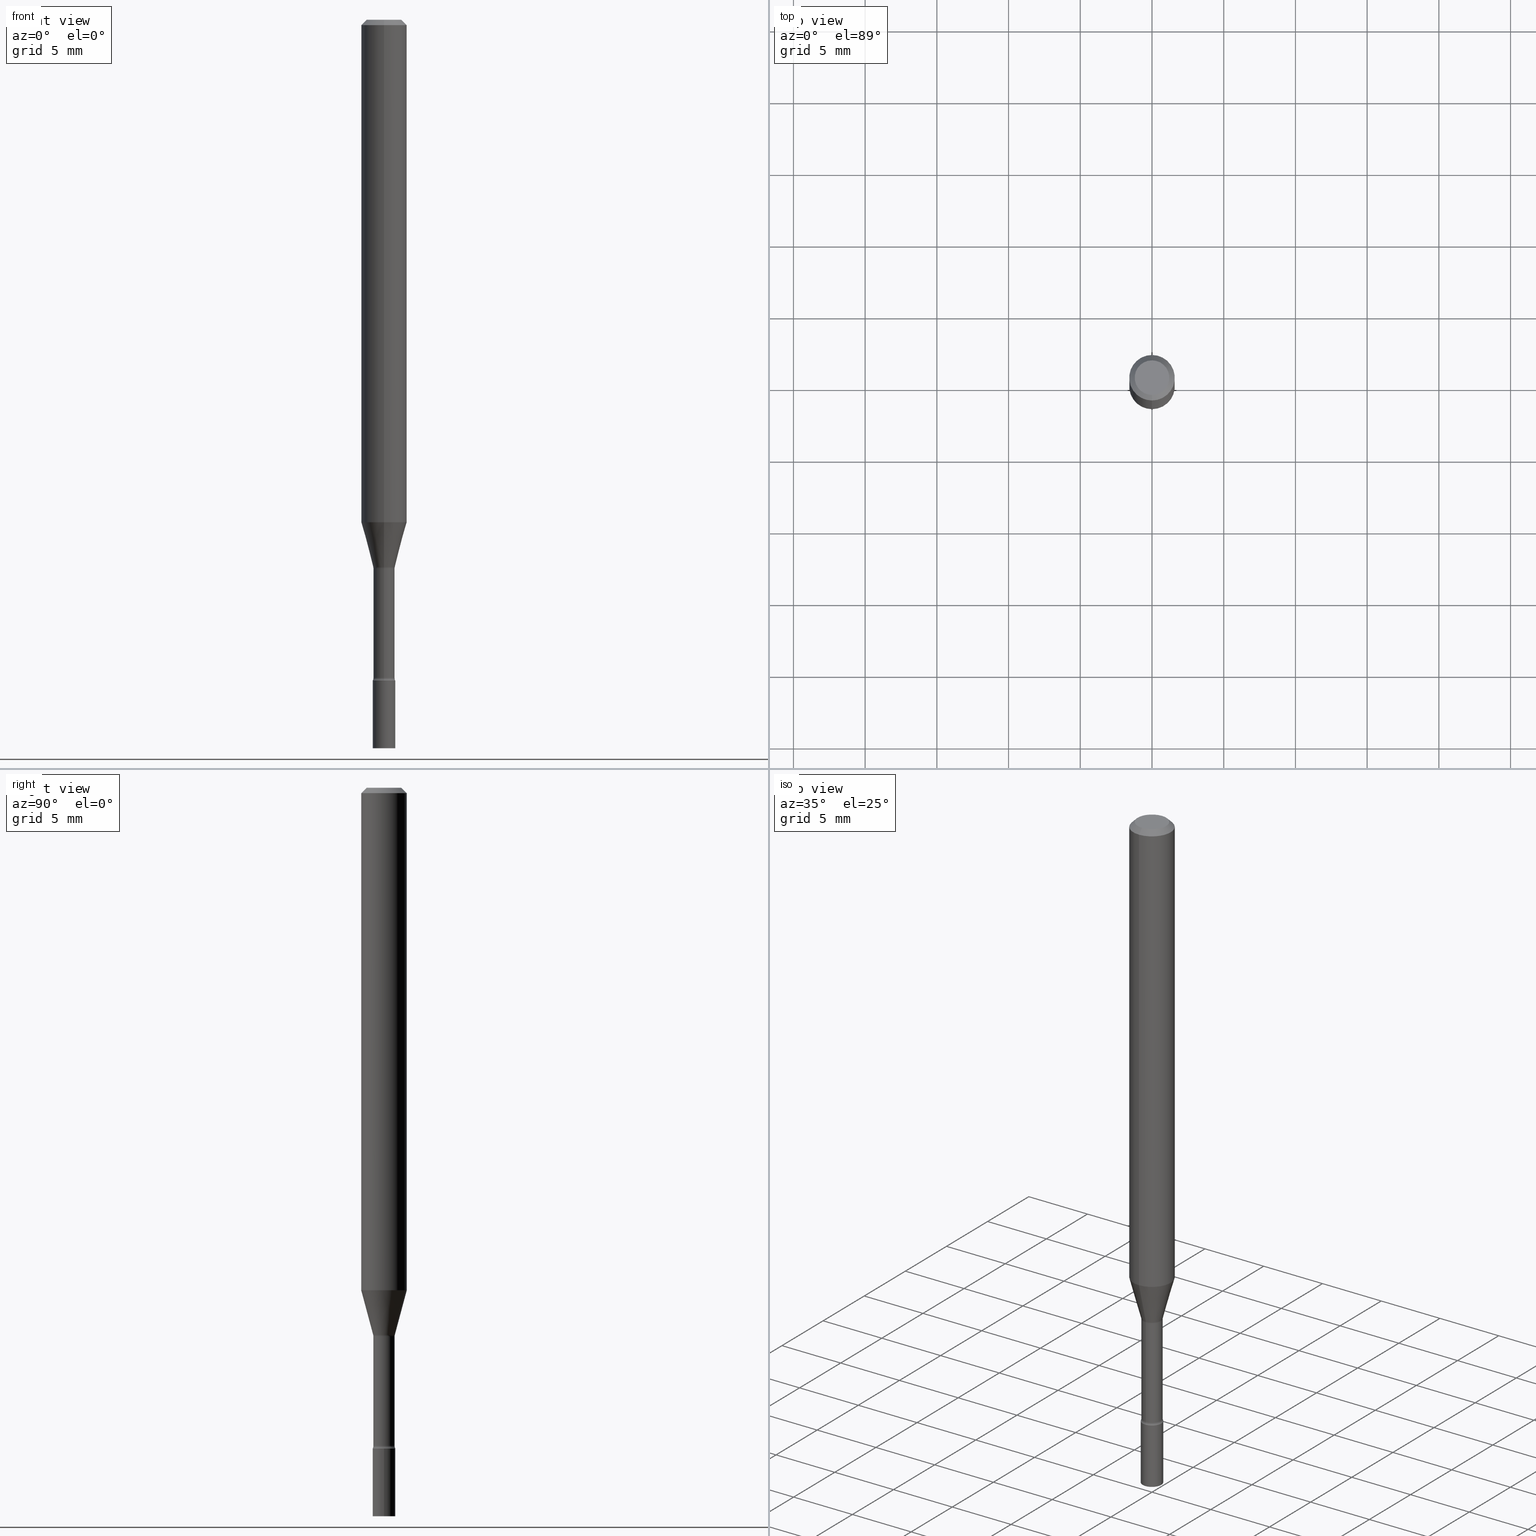
[diagram: canonical four-view strip — front | top / right | iso, engineering-drawing reading convention]
A machine part, canonical four-view strip (front | top / right | iso — engineering-drawing reading convention). The complete STEP part file that produces these views, byte-faithful:
ISO-10303-21;
HEADER;
FILE_DESCRIPTION (( 'STEP AP203' ),
    '1' );
FILE_NAME ('03413.STEP',
    '2024-03-08T21:18:52',
    ( '' ),
    ( '' ),
    'SwSTEP 2.0',
    'SolidWorks 2023',
    '' );
FILE_SCHEMA (( 'CONFIG_CONTROL_DESIGN' ));
ENDSEC;

DATA;
#1 = DIRECTION ( 'NONE',  ( 6.982962677686265922E-15, 1.000000000000000000, -3.483106191921935554E-15 ) ) ;
#2 = CARTESIAN_POINT ( 'NONE',  ( -4.364351673553912750E-16, -0.06250000000000005551, -0.01499999999999981209 ) ) ;
#3 = CARTESIAN_POINT ( 'NONE',  ( 4.436116649557529793E-29, -6.333495257881912546E-15, -1.813999999999999835 ) ) ;
#4 = AXIS2_PLACEMENT_3D ( 'NONE', #116, #491, #123 ) ;
#5 = DIRECTION ( 'NONE',  ( 1.000000000000000000, -6.982962677686266711E-15, 4.876176775795935232E-29 ) ) ;
#6 = LINE ( 'NONE', #328, #68 ) ;
#7 = CARTESIAN_POINT ( 'NONE',  ( 0.03099999999999999978, -7.199434520694564708E-15, -2.000000000000000000 ) ) ;
#8 = DIRECTION ( 'NONE',  ( -6.982962677686265922E-15, -1.000000000000000000, 0.000000000000000000 ) ) ;
#9 =( LENGTH_UNIT ( ) NAMED_UNIT ( * ) SI_UNIT ( $, .METRE. ) );
#10 = DIRECTION ( 'NONE',  ( -6.982962677686266711E-15, -1.000000000000000000, 3.491452733121231775E-15 ) ) ;
#11 = EDGE_LOOP ( 'NONE', ( #171, #231, #264, #467 ) ) ;
#12 = PERSON_AND_ORGANIZATION ( #230, #172 ) ;
#13 = CIRCLE ( 'NONE', #252, 0.02966111260566398414 ) ;
#14 = DIRECTION ( 'NONE',  ( -6.982962677686265922E-15, -1.000000000000000000, 4.370956789862821150E-15 ) ) ;
#15 = DIRECTION ( 'NONE',  ( -2.445488781453985936E-29, 3.491452733121231775E-15, 1.000000000000000000 ) ) ;
#16 = VERTEX_POINT ( 'NONE', #105 ) ;
#17 = PERSON_AND_ORGANIZATION_ROLE ( 'design_owner' ) ;
#18 = EDGE_CURVE ( 'NONE', #307, #257, #353, .T. ) ;
#19 = DIRECTION ( 'NONE',  ( 1.000000000000000000, -6.982962677686270655E-15, 0.000000000000000000 ) ) ;
#20 = VERTEX_POINT ( 'NONE', #185 ) ;
#21 = DATE_AND_TIME ( #212, #314 ) ;
#22 = VERTEX_POINT ( 'NONE', #114 ) ;
#23 = ADVANCED_FACE ( 'NONE', ( #107 ), #267, .F. ) ;
#24 = COORDINATED_UNIVERSAL_TIME_OFFSET ( 5, 0, .BEHIND. ) ;
#25 = FACE_OUTER_BOUND ( 'NONE', #379, .T. ) ;
#26 = APPLICATION_CONTEXT ( 'configuration controlled 3d designs of mechanical parts and assemblies' ) ;
#27 = ORIENTED_EDGE ( 'NONE', *, *, #210, .F. ) ;
#28 = VERTEX_POINT ( 'NONE', #440 ) ;
#29 = ADVANCED_FACE ( 'NONE', ( #34 ), #480, .T. ) ;
#30 = CIRCLE ( 'NONE', #263, 0.06250000000000000000 ) ;
#31 = EDGE_LOOP ( 'NONE', ( #181, #190, #387, #426 ) ) ;
#32 = CC_DESIGN_APPROVAL ( #76, ( #163 ) ) ;
#33 = ORIENTED_EDGE ( 'NONE', *, *, #401, .T. ) ;
#34 = FACE_OUTER_BOUND ( 'NONE', #65, .T. ) ;
#35 = DIRECTION ( 'NONE',  ( 2.445488781453985936E-29, -3.491452733121231775E-15, -1.000000000000000000 ) ) ;
#36 = AXIS2_PLACEMENT_3D ( 'NONE', #473, #64, #512 ) ;
#37 = CIRCLE ( 'NONE', #447, 0.03099999999999999978 ) ;
#38 = DIRECTION ( 'NONE',  ( -2.445488781453985936E-29, 3.491452733121231775E-15, 1.000000000000000000 ) ) ;
#39 = CYLINDRICAL_SURFACE ( 'NONE', #464, 0.03099999999999999978 ) ;
#40 = DIRECTION ( 'NONE',  ( -6.982962677686265922E-15, -1.000000000000000000, 0.000000000000000000 ) ) ;
#41 = MANIFOLD_SOLID_BREP ( 'Body-Move/Copy2[1]', #160 ) ;
#42 = DIRECTION ( 'NONE',  ( -2.445488781453986216E-29, 3.491452733121232169E-15, 1.000000000000000000 ) ) ;
#43 = CARTESIAN_POINT ( 'NONE',  ( -2.035533620545106341E-16, -0.02915000000000633404, -1.806783525791634704 ) ) ;
#44 = AXIS2_PLACEMENT_3D ( 'NONE', #282, #195, #245 ) ;
#45 = CARTESIAN_POINT ( 'NONE',  ( 4.364351673553919652E-16, 0.06249999999999995143, -0.01500000000000024751 ) ) ;
#46 = DIRECTION ( 'NONE',  ( 1.000000000000000000, -7.105427357601001070E-15, 4.926315158223024919E-29 ) ) ;
#47 = CARTESIAN_POINT ( 'NONE',  ( 0.000000000000000000, 0.000000000000000000, 0.000000000000000000 ) ) ;
#48 = CARTESIAN_POINT ( 'NONE',  ( 3.274220454076509529E-16, 0.02966111260565873833, -1.502092501787273271 ) ) ;
#49 = ADVANCED_FACE ( 'NONE', ( #273 ), #361, .T. ) ;
#50 = DIRECTION ( 'NONE',  ( -2.445488781453985375E-29, 3.491452733121232169E-15, 1.000000000000000000 ) ) ;
#51 = ORIENTED_EDGE ( 'NONE', *, *, #133, .F. ) ;
#52 = AXIS2_PLACEMENT_3D ( 'NONE', #487, #279, #445 ) ;
#53 = APPROVAL_ROLE ( '' ) ;
#54 = AXIS2_PLACEMENT_3D ( 'NONE', #167, #492, #367 ) ;
#55 = DIRECTION ( 'NONE',  ( -6.982962677686265922E-15, -1.000000000000000000, 0.000000000000000000 ) ) ;
#56 = ORIENTED_EDGE ( 'NONE', *, *, #108, .F. ) ;
#57 = PERSON_AND_ORGANIZATION ( #230, #172 ) ;
#58 = CARTESIAN_POINT ( 'NONE',  ( 4.890937612370273194E-29, -6.982962677686291165E-15, -2.000000000000000000 ) ) ;
#59 = EDGE_LOOP ( 'NONE', ( #56, #317, #339, #438 ) ) ;
#60 = ORIENTED_EDGE ( 'NONE', *, *, #269, .F. ) ;
#61 = APPROVAL_ROLE ( '' ) ;
#62 = CIRCLE ( 'NONE', #86, 0.03099999999999999978 ) ;
#63 = DIRECTION ( 'NONE',  ( -6.982962677686266711E-15, -1.000000000000000000, 3.491452733121231775E-15 ) ) ;
#64 = DIRECTION ( 'NONE',  ( -2.445488781453985936E-29, 3.491452733121231775E-15, 1.000000000000000000 ) ) ;
#65 = EDGE_LOOP ( 'NONE', ( #175, #304, #112, #149 ) ) ;
#66 = ADVANCED_FACE ( 'NONE', ( #272 ), #441, .F. ) ;
#67 = UNCERTAINTY_MEASURE_WITH_UNIT (LENGTH_MEASURE( 1.000000000000000082E-05 ), #158, 'distance_accuracy_value', 'NONE');
#68 = VECTOR ( 'NONE', #82, 39.37007874015748143 ) ;
#69 = AXIS2_PLACEMENT_3D ( 'NONE', #275, #87, #291 ) ;
#70 = EDGE_LOOP ( 'NONE', ( #398, #33, #236, #349 ) ) ;
#71 = ORIENTED_EDGE ( 'NONE', *, *, #498, .F. ) ;
#72 = EDGE_CURVE ( 'NONE', #516, #99, #219, .T. ) ;
#73 = FACE_OUTER_BOUND ( 'NONE', #70, .T. ) ;
#74 = PRODUCT_DEFINITION_SHAPE ( 'NONE', 'NONE',  #238 ) ;
#75 = CARTESIAN_POINT ( 'NONE',  ( 4.436080414419837365E-29, -6.333547148661465016E-15, -1.813999999999999835 ) ) ;
#76 = APPROVAL ( #422, 'UNSPECIFIED' ) ;
#77 = CIRCLE ( 'NONE', #312, 0.06250000000000000000 ) ;
#78 = LOCAL_TIME ( 16, 18, 52.00000000000000000, #310 ) ;
#79 = CARTESIAN_POINT ( 'NONE',  ( 3.137046178381285686E-16, 0.04414999999999372898, -1.806783525791634926 ) ) ;
#80 = DIRECTION ( 'NONE',  ( 7.105427357601001859E-15, 1.000000000000000000, 0.000000000000000000 ) ) ;
#81 = CARTESIAN_POINT ( 'NONE',  ( 4.440892098500625669E-16, 0.06250000000000000000, -2.182157958200769613E-16 ) ) ;
#82 = DIRECTION ( 'NONE',  ( -2.445468806185136877E-29, 3.491481338843145188E-15, 1.000000000000000000 ) ) ;
#83 = ADVANCED_FACE ( 'NONE', ( #25 ), #300, .T. ) ;
#84 = CARTESIAN_POINT ( 'NONE',  ( 4.890937612370273194E-29, -6.982962677686291165E-15, -2.000000000000000000 ) ) ;
#85 = DIRECTION ( 'NONE',  ( -2.445488781453985936E-29, 3.491452733121231775E-15, 1.000000000000000000 ) ) ;
#86 = AXIS2_PLACEMENT_3D ( 'NONE', #75, #411, #165 ) ;
#87 = DIRECTION ( 'NONE',  ( -2.445488781453985936E-29, 3.491452733121231775E-15, 1.000000000000000000 ) ) ;
#88 = LINE ( 'NONE', #346, #455 ) ;
#89 = SHAPE_DEFINITION_REPRESENTATION ( #74, #313 ) ;
#90 = FACE_OUTER_BOUND ( 'NONE', #125, .T. ) ;
#91 = ORIENTED_EDGE ( 'NONE', *, *, #200, .F. ) ;
#92 = APPROVAL_STATUS ( 'not_yet_approved' ) ;
#93 = DIRECTION ( 'NONE',  ( -6.982962677686265922E-15, -1.000000000000000000, 3.491452733121232169E-15 ) ) ;
#94 = ADVANCED_FACE ( 'NONE', ( #450 ), #161, .T. ) ;
#95 = PERSON_AND_ORGANIZATION_ROLE ( 'creator' ) ;
#96 = CIRCLE ( 'NONE', #44, 0.01500000000000001853 ) ;
#97 = DIRECTION ( 'NONE',  ( -6.982962677686265922E-15, -1.000000000000000000, 3.491452733121231381E-15 ) ) ;
#98 = EDGE_CURVE ( 'NONE', #220, #28, #283, .T. ) ;
#99 = VERTEX_POINT ( 'NONE', #115 ) ;
#100 = PERSON_AND_ORGANIZATION ( #230, #172 ) ;
#101 = VERTEX_POINT ( 'NONE', #2 ) ;
#102 = PERSON_AND_ORGANIZATION ( #230, #172 ) ;
#103 = EDGE_CURVE ( 'NONE', #307, #137, #435, .T. ) ;
#104 = VECTOR ( 'NONE', #42, 39.37007874015748143 ) ;
#105 = CARTESIAN_POINT ( 'NONE',  ( -0.03099999999999999978, -6.437986665088246838E-15, -1.813999999999999835 ) ) ;
#106 = ORIENTED_EDGE ( 'NONE', *, *, #333, .T. ) ;
#107 = FACE_OUTER_BOUND ( 'NONE', #215, .T. ) ;
#108 = EDGE_CURVE ( 'NONE', #253, #16, #6, .T. ) ;
#109 = EDGE_CURVE ( 'NONE', #390, #137, #484, .T. ) ;
#110 = CIRCLE ( 'NONE', #209, 0.02914999999999999883 ) ;
#111 = CC_DESIGN_APPROVAL ( #451, ( #238 ) ) ;
#112 = ORIENTED_EDGE ( 'NONE', *, *, #302, .F. ) ;
#113 = ADVANCED_FACE ( 'NONE', ( #124 ), #242, .T. ) ;
#114 = CARTESIAN_POINT ( 'NONE',  ( 0.03099999999999999978, -6.550018991669739348E-15, -1.813999999999999835 ) ) ;
#115 = CARTESIAN_POINT ( 'NONE',  ( -3.773273898774340269E-16, -0.04749999999999999362, 1.369287351235985732E-16 ) ) ;
#116 = CARTESIAN_POINT ( 'NONE',  ( 3.668233172180986383E-31, -5.237179099681858583E-17, -0.01500000000000003067 ) ) ;
#117 = EDGE_CURVE ( 'NONE', #515, #22, #332, .T. ) ;
#118 = DIRECTION ( 'NONE',  ( -2.445488781453985936E-29, 3.491452733121231775E-15, 1.000000000000000000 ) ) ;
#119 = AXIS2_PLACEMENT_3D ( 'NONE', #311, #232, #226 ) ;
#120 = DIRECTION ( 'NONE',  ( 1.000000000000000000, -7.105427357601001070E-15, 4.926315158223024919E-29 ) ) ;
#121 = CARTESIAN_POINT ( 'NONE',  ( 3.673350361826927807E-29, -5.244484970766083599E-15, -1.502092501787273271 ) ) ;
#122 = ORIENTED_EDGE ( 'NONE', *, *, #109, .F. ) ;
#123 = DIRECTION ( 'NONE',  ( -6.982962677686265922E-15, -1.000000000000000000, 3.483106191921935554E-15 ) ) ;
#124 = FACE_OUTER_BOUND ( 'NONE', #143, .T. ) ;
#125 = EDGE_LOOP ( 'NONE', ( #183, #262 ) ) ;
#126 = DIRECTION ( 'NONE',  ( 6.982962677686265922E-15, 1.000000000000000000, -3.483106191921935554E-15 ) ) ;
#127 = CARTESIAN_POINT ( 'NONE',  ( 4.418468842839320606E-29, -6.308299279283618555E-15, -1.806783525791634704 ) ) ;
#128 = CIRCLE ( 'NONE', #397, 0.02915000000000002311 ) ;
#129 = LENGTH_MEASURE_WITH_UNIT ( LENGTH_MEASURE( 0.02539999999999999897 ), #9 );
#130 = CARTESIAN_POINT ( 'NONE',  ( 3.682814365644040998E-29, -5.258082867198169507E-15, -1.505974787463811193 ) ) ;
#131 = DATE_AND_TIME ( #250, #78 ) ;
#132 = CARTESIAN_POINT ( 'NONE',  ( 0.000000000000000000, 0.000000000000000000, 0.000000000000000000 ) ) ;
#133 = EDGE_CURVE ( 'NONE', #249, #101, #453, .T. ) ;
#134 = EDGE_LOOP ( 'NONE', ( #360, #286, #358, #321 ) ) ;
#135 = COORDINATED_UNIVERSAL_TIME_OFFSET ( 5, 0, .BEHIND. ) ;
#136 = FACE_OUTER_BOUND ( 'NONE', #146, .T. ) ;
#137 = VERTEX_POINT ( 'NONE', #409 ) ;
#138 = CIRCLE ( 'NONE', #244, 0.02915000000000002311 ) ;
#139 = PERSON_AND_ORGANIZATION ( #230, #172 ) ;
#140 = FACE_OUTER_BOUND ( 'NONE', #514, .T. ) ;
#141 = ORIENTED_EDGE ( 'NONE', *, *, #18, .T. ) ;
#142 = APPLICATION_PROTOCOL_DEFINITION ( 'international standard', 'config_control_design', 1994, #419 ) ;
#143 = EDGE_LOOP ( 'NONE', ( #344, #368, #316, #224 ) ) ;
#144 = ADVANCED_FACE ( 'NONE', ( #73 ), #355, .T. ) ;
#145 = APPROVAL_DATE_TIME ( #131, #393 ) ;
#146 = EDGE_LOOP ( 'NONE', ( #122, #248, #211, #265 ) ) ;
#147 = AXIS2_PLACEMENT_3D ( 'NONE', #402, #180, #208 ) ;
#148 = CC_DESIGN_APPROVAL ( #393, ( #513 ) ) ;
#149 = ORIENTED_EDGE ( 'NONE', *, *, #98, .F. ) ;
#150 = VERTEX_POINT ( 'NONE', #452 ) ;
#151 = ORIENTED_EDGE ( 'NONE', *, *, #117, .F. ) ;
#152 = AXIS2_PLACEMENT_3D ( 'NONE', #159, #46, #80 ) ;
#153 = CIRCLE ( 'NONE', #290, 0.03099999999999999978 ) ;
#154 = ORIENTED_EDGE ( 'NONE', *, *, #210, .T. ) ;
#155 = EDGE_CURVE ( 'NONE', #16, #22, #268, .T. ) ;
#156 = DIRECTION ( 'NONE',  ( -2.445488781453985936E-29, 3.491452733121231775E-15, 1.000000000000000000 ) ) ;
#157 = CC_DESIGN_PERSON_AND_ORGANIZATION_ASSIGNMENT ( #57, #352, ( #513 ) ) ;
#158 =( CONVERSION_BASED_UNIT ( 'INCH', #129 ) LENGTH_UNIT ( ) NAMED_UNIT ( #281 ) );
#159 = CARTESIAN_POINT ( 'NONE',  ( 3.137046178381209758E-16, 0.04414999999999474206, -1.505974787463811415 ) ) ;
#160 = CLOSED_SHELL ( 'NONE', ( #94, #359, #444, #385 ) ) ;
#161 = CYLINDRICAL_SURFACE ( 'NONE', #276, 0.03099999999999999978 ) ;
#162 = VECTOR ( 'NONE', #428, 39.37007874015748854 ) ;
#163 = SECURITY_CLASSIFICATION ( '', '', #391 ) ;
#164 = DIRECTION ( 'NONE',  ( -2.445488781453986216E-29, 3.491452733121232169E-15, 1.000000000000000000 ) ) ;
#165 = DIRECTION ( 'NONE',  ( 1.000000000000000000, -6.982962677686270655E-15, 0.000000000000000000 ) ) ;
#166 = CYLINDRICAL_SURFACE ( 'NONE', #320, 0.06250000000000000000 ) ;
#167 = CARTESIAN_POINT ( 'NONE',  ( 4.436080414419837365E-29, -6.333547148661465016E-15, -1.813999999999999835 ) ) ;
#168 = LINE ( 'NONE', #45, #301 ) ;
#169 = DESIGN_CONTEXT ( 'detailed design', #26, 'design' ) ;
#170 = CIRCLE ( 'NONE', #69, 0.02914999999999999883 ) ;
#171 = ORIENTED_EDGE ( 'NONE', *, *, #401, .F. ) ;
#172 = ORGANIZATION ( 'UNSPECIFIED', 'UNSPECIFIED', '' ) ;
#173 = CALENDAR_DATE ( 2024, 8, 3 ) ;
#174 = CARTESIAN_POINT ( 'NONE',  ( 4.436080414419837365E-29, -6.333547148661465016E-15, -1.813999999999999835 ) ) ;
#175 = ORIENTED_EDGE ( 'NONE', *, *, #269, .T. ) ;
#176 = PERSON_AND_ORGANIZATION ( #230, #172 ) ;
#177 = DIRECTION ( 'NONE',  ( 1.000000000000000000, -6.982962677686265922E-15, 4.876176775795935793E-29 ) ) ;
#178 = EDGE_LOOP ( 'NONE', ( #206, #60, #421, #297 ) ) ;
#179 = APPROVAL_ROLE ( '' ) ;
#180 = DIRECTION ( 'NONE',  ( -1.000000000000000000, 6.982962677686265922E-15, -4.883557194083112340E-29 ) ) ;
#181 = ORIENTED_EDGE ( 'NONE', *, *, #394, .F. ) ;
#182 = CIRCLE ( 'NONE', #479, 0.01500000000000001159 ) ;
#183 = ORIENTED_EDGE ( 'NONE', *, *, #200, .T. ) ;
#184 = DIRECTION ( 'NONE',  ( -2.445488781453985936E-29, 3.491452733121231775E-15, 1.000000000000000000 ) ) ;
#185 = CARTESIAN_POINT ( 'NONE',  ( -4.364351673553580935E-16, -0.06250000000000484335, -1.379536105567578108 ) ) ;
#186 = AXIS2_PLACEMENT_3D ( 'NONE', #508, #184, #63 ) ;
#187 = TOROIDAL_SURFACE ( 'NONE', #518, 0.04415000000000000174, 0.01500000000000002373 ) ;
#188 = DIRECTION ( 'NONE',  ( 1.839019923739598738E-15, 0.2588190451025247363, 0.9659258262890673130 ) ) ;
#189 = ORIENTED_EDGE ( 'NONE', *, *, #302, .T. ) ;
#190 = ORIENTED_EDGE ( 'NONE', *, *, #319, .T. ) ;
#191 = AXIS2_PLACEMENT_3D ( 'NONE', #407, #241, #126 ) ;
#192 = CC_DESIGN_SECURITY_CLASSIFICATION ( #163, ( #513 ) ) ;
#193 = CARTESIAN_POINT ( 'NONE',  ( 4.418468842839320606E-29, -6.308299279283618555E-15, -1.806783525791634704 ) ) ;
#194 = DIRECTION ( 'NONE',  ( -6.982962677686265922E-15, -1.000000000000000000, 0.000000000000000000 ) ) ;
#195 = DIRECTION ( 'NONE',  ( -1.000000000000000000, 6.982962677686265922E-15, -4.883557194083112340E-29 ) ) ;
#196 = DIRECTION ( 'NONE',  ( -2.445468806185136597E-29, 3.491481338843145583E-15, 1.000000000000000000 ) ) ;
#197 = ORIENTED_EDGE ( 'NONE', *, *, #394, .T. ) ;
#198 = CARTESIAN_POINT ( 'NONE',  ( 3.373640069776234368E-29, -4.816585106223341561E-15, -1.379536105567578330 ) ) ;
#199 = EDGE_CURVE ( 'NONE', #390, #220, #138, .T. ) ;
#200 = EDGE_CURVE ( 'NONE', #22, #16, #62, .T. ) ;
#201 = VECTOR ( 'NONE', #490, 39.37007874015748143 ) ;
#202 = CARTESIAN_POINT ( 'NONE',  ( -0.03099999999999999978, -6.437986665088246838E-15, -2.000000000000000000 ) ) ;
#203 = DIRECTION ( 'NONE',  ( -6.982962677686265922E-15, -1.000000000000000000, 4.370956789862821150E-15 ) ) ;
#204 = CARTESIAN_POINT ( 'NONE',  ( 3.673350361826927807E-29, -5.244484970766083599E-15, -1.502092501787273271 ) ) ;
#205 = DIRECTION ( 'NONE',  ( -2.445488781453985936E-29, 3.491452733121231775E-15, 1.000000000000000000 ) ) ;
#206 = ORIENTED_EDGE ( 'NONE', *, *, #457, .F. ) ;
#207 = ORIENTED_EDGE ( 'NONE', *, *, #462, .T. ) ;
#208 = DIRECTION ( 'NONE',  ( -6.982962677686266711E-15, -1.000000000000000000, 0.000000000000000000 ) ) ;
#209 = AXIS2_PLACEMENT_3D ( 'NONE', #251, #501, #55 ) ;
#210 = EDGE_CURVE ( 'NONE', #217, #307, #13, .T. ) ;
#211 = ORIENTED_EDGE ( 'NONE', *, *, #98, .T. ) ;
#212 = CALENDAR_DATE ( 2024, 8, 3 ) ;
#213 = FACE_OUTER_BOUND ( 'NONE', #11, .T. ) ;
#214 = EDGE_LOOP ( 'NONE', ( #503, #470, #91, #151 ) ) ;
#215 = EDGE_LOOP ( 'NONE', ( #341, #197 ) ) ;
#216 = FACE_OUTER_BOUND ( 'NONE', #506, .T. ) ;
#217 = VERTEX_POINT ( 'NONE', #243 ) ;
#218 = CC_DESIGN_PERSON_AND_ORGANIZATION_ASSIGNMENT ( #222, #500, ( #163 ) ) ;
#219 = CIRCLE ( 'NONE', #186, 0.04749999999999999362 ) ;
#220 = VERTEX_POINT ( 'NONE', #43 ) ;
#221 = CIRCLE ( 'NONE', #424, 0.03099999999999999978 ) ;
#222 = PERSON_AND_ORGANIZATION ( #230, #172 ) ;
#223 = DIRECTION ( 'NONE',  ( -2.445488781453985936E-29, 3.491452733121231775E-15, 1.000000000000000000 ) ) ;
#224 = ORIENTED_EDGE ( 'NONE', *, *, #133, .T. ) ;
#225 = CC_DESIGN_DATE_AND_TIME_ASSIGNMENT ( #430, #260, ( #238 ) ) ;
#226 = DIRECTION ( 'NONE',  ( 6.982962677686265922E-15, 1.000000000000000000, -3.491452733121232169E-15 ) ) ;
#227 = VECTOR ( 'NONE', #370, 39.37007874015748143 ) ;
#228 = TOROIDAL_SURFACE ( 'NONE', #495, 0.04415000000000000174, 0.01500000000000002373 ) ;
#229 = AXIS2_PLACEMENT_3D ( 'NONE', #456, #376, #10 ) ;
#230 = PERSON ( 'UNSPECIFIED', 'UNSPECIFIED', 'UNSPECIFIED', ('UNSPECIFIED'), ('UNSPECIFIED'), ('UNSPECIFIED') ) ;
#231 = ORIENTED_EDGE ( 'NONE', *, *, #103, .T. ) ;
#232 = DIRECTION ( 'NONE',  ( 2.445488781453985375E-29, -3.491452733121232169E-15, -1.000000000000000000 ) ) ;
#233 = DIRECTION ( 'NONE',  ( -6.982962677686266711E-15, -1.000000000000000000, 0.000000000000000000 ) ) ;
#234 =( NAMED_UNIT ( * ) PLANE_ANGLE_UNIT ( ) SI_UNIT ( $, .RADIAN. ) );
#235 = CARTESIAN_POINT ( 'NONE',  ( 4.440892098500961428E-16, 0.06249999999999514971, -1.379536105567578552 ) ) ;
#236 = ORIENTED_EDGE ( 'NONE', *, *, #371, .T. ) ;
#237 = CARTESIAN_POINT ( 'NONE',  ( 0.000000000000000000, 0.000000000000000000, 0.000000000000000000 ) ) ;
#238 = PRODUCT_DEFINITION ( 'UNKNOWN', '', #513, #169 ) ;
#239 = DIRECTION ( 'NONE',  ( -6.982962677686265922E-15, -1.000000000000000000, 0.000000000000000000 ) ) ;
#240 = DIRECTION ( 'NONE',  ( -2.445488781453985936E-29, 3.491452733121231775E-15, 1.000000000000000000 ) ) ;
#241 = DIRECTION ( 'NONE',  ( 2.445488781453985936E-29, -3.491452733121231775E-15, -1.000000000000000000 ) ) ;
#242 = CONICAL_SURFACE ( 'NONE', #517, 0.06250000000000000000, 0.7853981633974483900 ) ;
#243 = CARTESIAN_POINT ( 'NONE',  ( -2.071224423039644956E-16, -0.02966111260566922994, -1.502092501787273271 ) ) ;
#244 = AXIS2_PLACEMENT_3D ( 'NONE', #193, #240, #363 ) ;
#245 = DIRECTION ( 'NONE',  ( -6.982962677686267499E-15, -1.000000000000000000, 0.000000000000000000 ) ) ;
#246 = CARTESIAN_POINT ( 'NONE',  ( 3.373640069776234368E-29, -4.816585106223341561E-15, -1.379536105567578330 ) ) ;
#247 = DIRECTION ( 'NONE',  ( -2.445488781453985936E-29, 3.491452733121231775E-15, 1.000000000000000000 ) ) ;
#248 = ORIENTED_EDGE ( 'NONE', *, *, #199, .T. ) ;
#249 = VERTEX_POINT ( 'NONE', #448 ) ;
#250 = CALENDAR_DATE ( 2024, 8, 3 ) ;
#251 = CARTESIAN_POINT ( 'NONE',  ( 3.682844447895300553E-29, -5.258039787702189962E-15, -1.505974787463811193 ) ) ;
#252 = AXIS2_PLACEMENT_3D ( 'NONE', #204, #85, #8 ) ;
#253 = VERTEX_POINT ( 'NONE', #202 ) ;
#254 = LOCAL_TIME ( 16, 18, 52.00000000000000000, #504 ) ;
#255 = PERSON_AND_ORGANIZATION ( #230, #172 ) ;
#256 = DIRECTION ( 'NONE',  ( -2.438088387897960049E-29, 3.491481338843145188E-15, 1.000000000000000000 ) ) ;
#257 = VERTEX_POINT ( 'NONE', #235 ) ;
#258 = CC_DESIGN_PERSON_AND_ORGANIZATION_ASSIGNMENT ( #12, #95, ( #513 ) ) ;
#259 = EDGE_LOOP ( 'NONE', ( #507, #27, #463, #189 ) ) ;
#260 = DATE_TIME_ROLE ( 'creation_date' ) ;
#261 = EDGE_CURVE ( 'NONE', #150, #354, #37, .T. ) ;
#262 = ORIENTED_EDGE ( 'NONE', *, *, #155, .T. ) ;
#263 = AXIS2_PLACEMENT_3D ( 'NONE', #198, #483, #203 ) ;
#264 = ORIENTED_EDGE ( 'NONE', *, *, #520, .T. ) ;
#265 = ORIENTED_EDGE ( 'NONE', *, *, #520, .F. ) ;
#266 = ADVANCED_FACE ( 'NONE', ( #365 ), #472, .F. ) ;
#267 = PLANE ( 'NONE',  #119 ) ;
#268 = CIRCLE ( 'NONE', #54, 0.03099999999999999978 ) ;
#269 = EDGE_CURVE ( 'NONE', #220, #390, #128, .T. ) ;
#270 = AXIS2_PLACEMENT_3D ( 'NONE', #340, #293, #469 ) ;
#271 = APPROVAL_PERSON_ORGANIZATION ( #100, #451, #179 ) ;
#272 = FACE_OUTER_BOUND ( 'NONE', #134, .T. ) ;
#273 = FACE_OUTER_BOUND ( 'NONE', #383, .T. ) ;
#274 = DIRECTION ( 'NONE',  ( 1.000000000000000000, -6.982962677686266711E-15, 4.876176775795935232E-29 ) ) ;
#275 = CARTESIAN_POINT ( 'NONE',  ( 3.682844447895300553E-29, -5.258039787702189962E-15, -1.505974787463811193 ) ) ;
#276 = AXIS2_PLACEMENT_3D ( 'NONE', #237, #196, #274 ) ;
#277 = CIRCLE ( 'NONE', #229, 0.04749999999999999362 ) ;
#278 = LOCAL_TIME ( 16, 18, 52.00000000000000000, #308 ) ;
#279 = DIRECTION ( 'NONE',  ( -2.445488781453985936E-29, 3.491452733121231775E-15, 1.000000000000000000 ) ) ;
#280 = EDGE_CURVE ( 'NONE', #220, #150, #436, .T. ) ;
#281 = DIMENSIONAL_EXPONENTS ( 1.000000000000000000, 0.000000000000000000, 0.000000000000000000, 0.000000000000000000, 0.000000000000000000, 0.000000000000000000, 0.000000000000000000 ) ;
#282 = CARTESIAN_POINT ( 'NONE',  ( -3.082978022198118430E-16, -0.04415000000000526142, -1.505974787463810971 ) ) ;
#283 = LINE ( 'NONE', #405, #227 ) ;
#284 = DIRECTION ( 'NONE',  ( 4.937700262164548042E-15, 0.7071067811865451302, -0.7071067811865499042 ) ) ;
#285 = CARTESIAN_POINT ( 'NONE',  ( 0.03099999999999999978, -2.164718430082742572E-16, 1.511614800496739984E-30 ) ) ;
#286 = ORIENTED_EDGE ( 'NONE', *, *, #457, .T. ) ;
#287 = DIRECTION ( 'NONE',  ( -2.445468806185136597E-29, 3.491481338843145583E-15, 1.000000000000000000 ) ) ;
#288 = VECTOR ( 'NONE', #188, 39.37007874015748854 ) ;
#289 = CARTESIAN_POINT ( 'NONE',  ( 2.136957277798944871E-16, 0.02914999999999371566, -1.806783525791634704 ) ) ;
#290 = AXIS2_PLACEMENT_3D ( 'NONE', #84, #329, #489 ) ;
#291 = DIRECTION ( 'NONE',  ( -6.982962677686265922E-15, -1.000000000000000000, 0.000000000000000000 ) ) ;
#292 = PRODUCT_RELATED_PRODUCT_CATEGORY ( 'detail', '', ( #432 ) ) ;
#293 = DIRECTION ( 'NONE',  ( 2.438088387897960049E-29, -3.491481338843145188E-15, -1.000000000000000000 ) ) ;
#294 = EDGE_LOOP ( 'NONE', ( #459, #207, #71, #351 ) ) ;
#295 = APPROVAL_DATE_TIME ( #380, #451 ) ;
#296 = CARTESIAN_POINT ( 'NONE',  ( 2.202682480856753802E-16, 0.03099999999999367151, -1.813999999999999835 ) ) ;
#297 = ORIENTED_EDGE ( 'NONE', *, *, #261, .T. ) ;
#298 = DATE_TIME_ROLE ( 'classification_date' ) ;
#299 = DIRECTION ( 'NONE',  ( -6.982962677686265922E-15, -1.000000000000000000, 3.491452733121231381E-15 ) ) ;
#300 = CONICAL_SURFACE ( 'NONE', #36, 0.02966111260566398414, 0.2617993877991500740 ) ;
#301 = VECTOR ( 'NONE', #284, 39.37007874015748143 ) ;
#302 = EDGE_CURVE ( 'NONE', #28, #137, #110, .T. ) ;
#303 = CC_DESIGN_PERSON_AND_ORGANIZATION_ASSIGNMENT ( #176, #342, ( #238 ) ) ;
#304 = ORIENTED_EDGE ( 'NONE', *, *, #109, .T. ) ;
#305 = APPROVAL_DATE_TIME ( #21, #76 ) ;
#306 = PLANE ( 'NONE',  #270 ) ;
#307 = VERTEX_POINT ( 'NONE', #48 ) ;
#308 = COORDINATED_UNIVERSAL_TIME_OFFSET ( 5, 0, .BEHIND. ) ;
#309 = ORIENTED_EDGE ( 'NONE', *, *, #420, .F. ) ;
#310 = COORDINATED_UNIVERSAL_TIME_OFFSET ( 5, 0, .BEHIND. ) ;
#311 = CARTESIAN_POINT ( 'NONE',  ( 3.316907271900976096E-16, 0.04749999999999999362, -1.803016396730884645E-16 ) ) ;
#312 = AXIS2_PLACEMENT_3D ( 'NONE', #246, #205, #14 ) ;
#313 = ADVANCED_BREP_SHAPE_REPRESENTATION ( '03413', ( #41, #412, #357 ), #348 ) ;
#314 = LOCAL_TIME ( 16, 18, 52.00000000000000000, #24 ) ;
#315 = ADVANCED_FACE ( 'NONE', ( #465 ), #228, .F. ) ;
#316 = ORIENTED_EDGE ( 'NONE', *, *, #509, .T. ) ;
#317 = ORIENTED_EDGE ( 'NONE', *, *, #374, .T. ) ;
#318 = DIRECTION ( 'NONE',  ( -2.445488781453985936E-29, 3.491452733121231775E-15, 1.000000000000000000 ) ) ;
#319 = EDGE_CURVE ( 'NONE', #99, #101, #88, .T. ) ;
#320 = AXIS2_PLACEMENT_3D ( 'NONE', #47, #331, #366 ) ;
#321 = ORIENTED_EDGE ( 'NONE', *, *, #280, .F. ) ;
#322 = DIRECTION ( 'NONE',  ( -2.445468806185136877E-29, 3.491481338843145188E-15, 1.000000000000000000 ) ) ;
#323 = CARTESIAN_POINT ( 'NONE',  ( 4.436116649557529793E-29, -6.333495257881912546E-15, -1.813999999999999835 ) ) ;
#324 = CC_DESIGN_PERSON_AND_ORGANIZATION_ASSIGNMENT ( #102, #17, ( #432 ) ) ;
#325 = CARTESIAN_POINT ( 'NONE',  ( -4.364351673553916201E-16, -0.06250000000000000000, 2.182157958200769613E-16 ) ) ;
#326 = AXIS2_PLACEMENT_3D ( 'NONE', #323, #416, #239 ) ;
#327 = LOCAL_TIME ( 16, 18, 52.00000000000000000, #135 ) ;
#328 = CARTESIAN_POINT ( 'NONE',  ( -0.03099999999999999978, 2.202682480856310560E-16, -1.524869877979020612E-30 ) ) ;
#329 = DIRECTION ( 'NONE',  ( -2.445468806185136597E-29, 3.491481338843145583E-15, 1.000000000000000000 ) ) ;
#330 = DIRECTION ( 'NONE',  ( -2.445488781453985936E-29, 3.491452733121231775E-15, 1.000000000000000000 ) ) ;
#331 = DIRECTION ( 'NONE',  ( -2.445488781453985936E-29, 3.491452733121231775E-15, 1.000000000000000000 ) ) ;
#332 = LINE ( 'NONE', #285, #334 ) ;
#333 = EDGE_CURVE ( 'NONE', #257, #20, #77, .T. ) ;
#334 = VECTOR ( 'NONE', #322, 39.37007874015748143 ) ;
#335 = CARTESIAN_POINT ( 'NONE',  ( 3.673350361826927807E-29, -5.244484970766083599E-15, -1.502092501787273271 ) ) ;
#336 = CIRCLE ( 'NONE', #326, 0.03099999999999999978 ) ;
#337 = ORIENTED_EDGE ( 'NONE', *, *, #374, .F. ) ;
#338 = ORIENTED_EDGE ( 'NONE', *, *, #442, .T. ) ;
#339 = ORIENTED_EDGE ( 'NONE', *, *, #117, .T. ) ;
#340 = CARTESIAN_POINT ( 'NONE',  ( 2.164718430083231419E-16, 0.03099999999999301578, -2.000000000000000000 ) ) ;
#341 = ORIENTED_EDGE ( 'NONE', *, *, #72, .T. ) ;
#342 = PERSON_AND_ORGANIZATION_ROLE ( 'creator' ) ;
#343 = CYLINDRICAL_SURFACE ( 'NONE', #511, 0.02915000000000001271 ) ;
#344 = ORIENTED_EDGE ( 'NONE', *, *, #319, .F. ) ;
#345 = MECHANICAL_CONTEXT ( 'NONE', #419, 'mechanical' ) ;
#346 = CARTESIAN_POINT ( 'NONE',  ( -4.287811248607203282E-16, -0.06250000000000005551, -0.01499999999999981209 ) ) ;
#347 = AXIS2_PLACEMENT_3D ( 'NONE', #415, #156, #373 ) ;
#348 =( GEOMETRIC_REPRESENTATION_CONTEXT ( 3 ) GLOBAL_UNCERTAINTY_ASSIGNED_CONTEXT ( ( #67 ) ) GLOBAL_UNIT_ASSIGNED_CONTEXT ( ( #158, #234, #404 ) ) REPRESENTATION_CONTEXT ( 'NONE', 'WORKASPACE' ) );
#349 = ORIENTED_EDGE ( 'NONE', *, *, #333, .F. ) ;
#350 = CALENDAR_DATE ( 2024, 8, 3 ) ;
#351 = ORIENTED_EDGE ( 'NONE', *, *, #442, .F. ) ;
#352 = PERSON_AND_ORGANIZATION_ROLE ( 'design_supplier' ) ;
#353 = LINE ( 'NONE', #476, #288 ) ;
#354 = VERTEX_POINT ( 'NONE', #296 ) ;
#355 = CONICAL_SURFACE ( 'NONE', #485, 0.02966111260566398414, 0.2617993877991500740 ) ;
#356 = CIRCLE ( 'NONE', #414, 0.02966111260566398414 ) ;
#357 = AXIS2_PLACEMENT_3D ( 'NONE', #427, #384, #460 ) ;
#358 = ORIENTED_EDGE ( 'NONE', *, *, #433, .T. ) ;
#359 = ADVANCED_FACE ( 'NONE', ( #90 ), #505, .T. ) ;
#360 = ORIENTED_EDGE ( 'NONE', *, *, #199, .F. ) ;
#361 = CYLINDRICAL_SURFACE ( 'NONE', #493, 0.06250000000000000000 ) ;
#362 = AXIS2_PLACEMENT_3D ( 'NONE', #174, #256, #177 ) ;
#363 = DIRECTION ( 'NONE',  ( -6.982962677686266711E-15, -1.000000000000000000, 0.000000000000000000 ) ) ;
#364 = DIRECTION ( 'NONE',  ( -6.982962677686265922E-15, -1.000000000000000000, 0.000000000000000000 ) ) ;
#365 = FACE_OUTER_BOUND ( 'NONE', #178, .T. ) ;
#366 = DIRECTION ( 'NONE',  ( -6.982962677686265922E-15, -1.000000000000000000, 3.491452733121231381E-15 ) ) ;
#367 = DIRECTION ( 'NONE',  ( 1.000000000000000000, -6.982962677686270655E-15, 0.000000000000000000 ) ) ;
#368 = ORIENTED_EDGE ( 'NONE', *, *, #72, .F. ) ;
#369 = FACE_OUTER_BOUND ( 'NONE', #59, .T. ) ;
#370 = DIRECTION ( 'NONE',  ( -2.445488781453986216E-29, 3.491452733121232169E-15, 1.000000000000000000 ) ) ;
#371 = EDGE_CURVE ( 'NONE', #217, #20, #417, .T. ) ;
#372 = DIRECTION ( 'NONE',  ( -2.445488781453985936E-29, 3.491452733121231775E-15, 1.000000000000000000 ) ) ;
#373 = DIRECTION ( 'NONE',  ( -6.982962677686265922E-15, -1.000000000000000000, 3.491452733121231775E-15 ) ) ;
#374 = EDGE_CURVE ( 'NONE', #253, #515, #221, .T. ) ;
#375 = DIRECTION ( 'NONE',  ( 7.105427357601001859E-15, 1.000000000000000000, 0.000000000000000000 ) ) ;
#376 = DIRECTION ( 'NONE',  ( -2.445488781453985936E-29, 3.491452733121231775E-15, 1.000000000000000000 ) ) ;
#377 = CARTESIAN_POINT ( 'NONE',  ( 3.682814365644040998E-29, -5.258082867198169507E-15, -1.505974787463811193 ) ) ;
#378 = AXIS2_PLACEMENT_3D ( 'NONE', #461, #50, #93 ) ;
#379 = EDGE_LOOP ( 'NONE', ( #154, #141, #309, #408 ) ) ;
#380 = DATE_AND_TIME ( #468, #278 ) ;
#381 = ADVANCED_FACE ( 'NONE', ( #216 ), #382, .F. ) ;
#382 = PLANE ( 'NONE',  #378 ) ;
#383 = EDGE_LOOP ( 'NONE', ( #431, #106, #338, #51 ) ) ;
#384 = DIRECTION ( 'NONE',  ( 0.000000000000000000, 0.000000000000000000, 1.000000000000000000 ) ) ;
#385 = ADVANCED_FACE ( 'NONE', ( #140 ), #306, .T. ) ;
#386 = CARTESIAN_POINT ( 'NONE',  ( -2.071224423039644956E-16, -0.02966111260566922994, -1.502092501787273271 ) ) ;
#387 = ORIENTED_EDGE ( 'NONE', *, *, #498, .T. ) ;
#388 = ADVANCED_FACE ( 'NONE', ( #136 ), #343, .T. ) ;
#389 = CIRCLE ( 'NONE', #4, 0.06250000000000000000 ) ;
#390 = VERTEX_POINT ( 'NONE', #289 ) ;
#391 = SECURITY_CLASSIFICATION_LEVEL ( 'unclassified' ) ;
#392 = DIRECTION ( 'NONE',  ( -6.982962677686265922E-15, -1.000000000000000000, 3.491452733121231775E-15 ) ) ;
#393 = APPROVAL ( #471, 'UNSPECIFIED' ) ;
#394 = EDGE_CURVE ( 'NONE', #99, #516, #277, .T. ) ;
#395 = CARTESIAN_POINT ( 'NONE',  ( 4.418432751852640684E-29, -6.308350963630715621E-15, -1.806783525791634704 ) ) ;
#396 = CARTESIAN_POINT ( 'NONE',  ( 0.000000000000000000, 0.000000000000000000, 0.000000000000000000 ) ) ;
#397 = AXIS2_PLACEMENT_3D ( 'NONE', #127, #118, #233 ) ;
#398 = ORIENTED_EDGE ( 'NONE', *, *, #18, .F. ) ;
#399 = ADVANCED_FACE ( 'NONE', ( #213 ), #187, .F. ) ;
#400 = DIRECTION ( 'NONE',  ( -2.445488781453985936E-29, 3.491452733121231775E-15, 1.000000000000000000 ) ) ;
#401 = EDGE_CURVE ( 'NONE', #307, #217, #356, .T. ) ;
#402 = CARTESIAN_POINT ( 'NONE',  ( -3.082978022198047432E-16, -0.04415000000000634389, -1.806783525791634482 ) ) ;
#403 = VECTOR ( 'NONE', #164, 39.37007874015748143 ) ;
#404 =( NAMED_UNIT ( * ) SI_UNIT ( $, .STERADIAN. ) SOLID_ANGLE_UNIT ( ) );
#405 = CARTESIAN_POINT ( 'NONE',  ( -2.035533620545547363E-16, -0.02915000000000001271, 1.017758471704839448E-16 ) ) ;
#406 = ADVANCED_FACE ( 'NONE', ( #410 ), #466, .T. ) ;
#407 = CARTESIAN_POINT ( 'NONE',  ( 3.668233172180986383E-31, -5.237179099681858583E-17, -0.01500000000000003067 ) ) ;
#408 = ORIENTED_EDGE ( 'NONE', *, *, #371, .F. ) ;
#409 = CARTESIAN_POINT ( 'NONE',  ( 2.071232074741134460E-16, 0.02914999999999473568, -1.505974787463811193 ) ) ;
#410 = FACE_OUTER_BOUND ( 'NONE', #31, .T. ) ;
#411 = DIRECTION ( 'NONE',  ( -2.445468806185136597E-29, 3.491481338843145583E-15, 1.000000000000000000 ) ) ;
#412 = MANIFOLD_SOLID_BREP ( 'Body-Move/Copy2[2]', #478 ) ;
#413 = CARTESIAN_POINT ( 'NONE',  ( 0.000000000000000000, 0.000000000000000000, 0.000000000000000000 ) ) ;
#414 = AXIS2_PLACEMENT_3D ( 'NONE', #335, #372, #364 ) ;
#415 = CARTESIAN_POINT ( 'NONE',  ( 4.418432751852640684E-29, -6.308350963630715621E-15, -1.806783525791634704 ) ) ;
#416 = DIRECTION ( 'NONE',  ( -2.445488781453985936E-29, 3.491452733121231775E-15, 1.000000000000000000 ) ) ;
#417 = LINE ( 'NONE', #386, #162 ) ;
#418 = DATE_AND_TIME ( #350, #327 ) ;
#419 = APPLICATION_CONTEXT ( 'configuration controlled 3d designs of mechanical parts and assemblies' ) ;
#420 = EDGE_CURVE ( 'NONE', #20, #257, #30, .T. ) ;
#421 = ORIENTED_EDGE ( 'NONE', *, *, #280, .T. ) ;
#422 = APPROVAL_STATUS ( 'not_yet_approved' ) ;
#423 = DIRECTION ( 'NONE',  ( -2.445488781453985936E-29, 3.491452733121231775E-15, 1.000000000000000000 ) ) ;
#424 = AXIS2_PLACEMENT_3D ( 'NONE', #58, #499, #19 ) ;
#425 = APPROVAL_PERSON_ORGANIZATION ( #255, #76, #53 ) ;
#426 = ORIENTED_EDGE ( 'NONE', *, *, #509, .F. ) ;
#427 = CARTESIAN_POINT ( 'NONE',  ( 0.000000000000000000, 0.000000000000000000, 0.000000000000000000 ) ) ;
#428 = DIRECTION ( 'NONE',  ( -1.807323732225328562E-15, -0.2588190451025179639, 0.9659258262890690894 ) ) ;
#429 = ORIENTED_EDGE ( 'NONE', *, *, #261, .F. ) ;
#430 = DATE_AND_TIME ( #173, #254 ) ;
#431 = ORIENTED_EDGE ( 'NONE', *, *, #462, .F. ) ;
#432 = PRODUCT ( '03413', '03413', '', ( #345 ) ) ;
#433 = EDGE_CURVE ( 'NONE', #354, #150, #336, .T. ) ;
#434 = EDGE_CURVE ( 'NONE', #217, #28, #96, .T. ) ;
#435 = CIRCLE ( 'NONE', #152, 0.01500000000000001853 ) ;
#436 = CIRCLE ( 'NONE', #147, 0.01500000000000001159 ) ;
#437 = ORIENTED_EDGE ( 'NONE', *, *, #433, .F. ) ;
#438 = ORIENTED_EDGE ( 'NONE', *, *, #155, .F. ) ;
#439 = DIRECTION ( 'NONE',  ( -6.982962677686265922E-15, -1.000000000000000000, 3.491452733121231381E-15 ) ) ;
#440 = CARTESIAN_POINT ( 'NONE',  ( -2.035533620545178324E-16, -0.02915000000000525851, -1.505974787463811193 ) ) ;
#441 = TOROIDAL_SURFACE ( 'NONE', #446, 0.04415000000000003644, 0.01500000000000001332 ) ;
#442 = EDGE_CURVE ( 'NONE', #20, #101, #486, .T. ) ;
#443 = CARTESIAN_POINT ( 'NONE',  ( 3.668233172180986383E-31, -5.237179099681858583E-17, -0.01500000000000003067 ) ) ;
#444 = ADVANCED_FACE ( 'NONE', ( #369 ), #39, .T. ) ;
#445 = DIRECTION ( 'NONE',  ( -6.982962677686265922E-15, -1.000000000000000000, 3.483106191921935554E-15 ) ) ;
#446 = AXIS2_PLACEMENT_3D ( 'NONE', #395, #223, #392 ) ;
#447 = AXIS2_PLACEMENT_3D ( 'NONE', #3, #38, #194 ) ;
#448 = CARTESIAN_POINT ( 'NONE',  ( 4.440892098500965372E-16, 0.06249999999999995837, -0.01500000000000024751 ) ) ;
#449 = LINE ( 'NONE', #81, #403 ) ;
#450 = FACE_OUTER_BOUND ( 'NONE', #214, .T. ) ;
#451 = APPROVAL ( #92, 'UNSPECIFIED' ) ;
#452 = CARTESIAN_POINT ( 'NONE',  ( -2.164718430082299331E-16, -0.03100000000000634193, -1.813999999999999835 ) ) ;
#453 = CIRCLE ( 'NONE', #52, 0.06250000000000000000 ) ;
#454 = CARTESIAN_POINT ( 'NONE',  ( 3.840629472727447874E-16, 0.04749999999999999362, -1.947592745229184119E-16 ) ) ;
#455 = VECTOR ( 'NONE', #496, 39.37007874015748143 ) ;
#456 = CARTESIAN_POINT ( 'NONE',  ( 7.071196766323471150E-46, -1.009562974218151673E-31, -2.891526969965991934E-17 ) ) ;
#457 = EDGE_CURVE ( 'NONE', #390, #354, #182, .T. ) ;
#458 = DIRECTION ( 'NONE',  ( -6.982962677686265922E-15, -1.000000000000000000, 3.491452733121231381E-15 ) ) ;
#459 = ORIENTED_EDGE ( 'NONE', *, *, #420, .T. ) ;
#460 = DIRECTION ( 'NONE',  ( 1.000000000000000000, 0.000000000000000000, 0.000000000000000000 ) ) ;
#461 = CARTESIAN_POINT ( 'NONE',  ( 2.164718430083186060E-16, 0.03099999999999366457, -1.813999999999999835 ) ) ;
#462 = EDGE_CURVE ( 'NONE', #257, #249, #449, .T. ) ;
#463 = ORIENTED_EDGE ( 'NONE', *, *, #434, .T. ) ;
#464 = AXIS2_PLACEMENT_3D ( 'NONE', #413, #287, #5 ) ;
#465 = FACE_OUTER_BOUND ( 'NONE', #259, .T. ) ;
#466 = CONICAL_SURFACE ( 'NONE', #191, 0.06250000000000000000, 0.7853981633974483900 ) ;
#467 = ORIENTED_EDGE ( 'NONE', *, *, #434, .F. ) ;
#468 = CALENDAR_DATE ( 2024, 8, 3 ) ;
#469 = DIRECTION ( 'NONE',  ( -1.000000000000000000, 6.982962677686265922E-15, -4.876176775795935793E-29 ) ) ;
#470 = ORIENTED_EDGE ( 'NONE', *, *, #108, .T. ) ;
#471 = APPROVAL_STATUS ( 'not_yet_approved' ) ;
#472 = TOROIDAL_SURFACE ( 'NONE', #347, 0.04415000000000003644, 0.01500000000000001332 ) ;
#473 = CARTESIAN_POINT ( 'NONE',  ( 3.673350361826927807E-29, -5.244484970766083599E-15, -1.502092501787273271 ) ) ;
#474 = APPROVAL_PERSON_ORGANIZATION ( #139, #393, #61 ) ;
#475 = CARTESIAN_POINT ( 'NONE',  ( 0.000000000000000000, 0.000000000000000000, 0.000000000000000000 ) ) ;
#476 = CARTESIAN_POINT ( 'NONE',  ( 2.107548809652055165E-16, 0.02966111260565873833, -1.502092501787273271 ) ) ;
#477 = DIRECTION ( 'NONE',  ( -6.982962677686265922E-15, -1.000000000000000000, 3.491452733121231381E-15 ) ) ;
#478 = CLOSED_SHELL ( 'NONE', ( #399, #29, #66, #406, #481, #83, #144, #49, #113, #23, #381, #266, #388, #315 ) ) ;
#479 = AXIS2_PLACEMENT_3D ( 'NONE', #79, #120, #375 ) ;
#480 = CYLINDRICAL_SURFACE ( 'NONE', #510, 0.02915000000000001271 ) ;
#481 = ADVANCED_FACE ( 'NONE', ( #494 ), #166, .T. ) ;
#482 = CARTESIAN_POINT ( 'NONE',  ( 2.071232074740692452E-16, 0.02915000000000001271, -1.017758471704839448E-16 ) ) ;
#483 = DIRECTION ( 'NONE',  ( -2.445488781453985936E-29, 3.491452733121231775E-15, 1.000000000000000000 ) ) ;
#484 = LINE ( 'NONE', #482, #201 ) ;
#485 = AXIS2_PLACEMENT_3D ( 'NONE', #121, #330, #40 ) ;
#486 = LINE ( 'NONE', #325, #104 ) ;
#487 = CARTESIAN_POINT ( 'NONE',  ( 3.668233172180986383E-31, -5.237179099681858583E-17, -0.01500000000000003067 ) ) ;
#488 = ORIENTED_EDGE ( 'NONE', *, *, #502, .F. ) ;
#489 = DIRECTION ( 'NONE',  ( 1.000000000000000000, -6.982962677686270655E-15, 0.000000000000000000 ) ) ;
#490 = DIRECTION ( 'NONE',  ( -2.445488781453986216E-29, 3.491452733121232169E-15, 1.000000000000000000 ) ) ;
#491 = DIRECTION ( 'NONE',  ( -2.445488781453985936E-29, 3.491452733121231775E-15, 1.000000000000000000 ) ) ;
#492 = DIRECTION ( 'NONE',  ( -2.445468806185136597E-29, 3.491481338843145583E-15, 1.000000000000000000 ) ) ;
#493 = AXIS2_PLACEMENT_3D ( 'NONE', #396, #400, #477 ) ;
#494 = FACE_OUTER_BOUND ( 'NONE', #294, .T. ) ;
#495 = AXIS2_PLACEMENT_3D ( 'NONE', #377, #15, #97 ) ;
#496 = DIRECTION ( 'NONE',  ( -4.851104656540964275E-15, -0.7071067811865500152, -0.7071067811865450192 ) ) ;
#497 = APPLICATION_PROTOCOL_DEFINITION ( 'international standard', 'config_control_design', 1994, #26 ) ;
#498 = EDGE_CURVE ( 'NONE', #101, #249, #389, .T. ) ;
#499 = DIRECTION ( 'NONE',  ( -2.445468806185136597E-29, 3.491481338843145583E-15, 1.000000000000000000 ) ) ;
#500 = PERSON_AND_ORGANIZATION_ROLE ( 'classification_officer' ) ;
#501 = DIRECTION ( 'NONE',  ( -2.445488781453985936E-29, 3.491452733121231775E-15, 1.000000000000000000 ) ) ;
#502 = EDGE_CURVE ( 'NONE', #515, #253, #153, .T. ) ;
#503 = ORIENTED_EDGE ( 'NONE', *, *, #502, .T. ) ;
#504 = COORDINATED_UNIVERSAL_TIME_OFFSET ( 5, 0, .BEHIND. ) ;
#505 = PLANE ( 'NONE',  #362 ) ;
#506 = EDGE_LOOP ( 'NONE', ( #429, #437 ) ) ;
#507 = ORIENTED_EDGE ( 'NONE', *, *, #103, .F. ) ;
#508 = CARTESIAN_POINT ( 'NONE',  ( 7.071196766323471150E-46, -1.009562974218151673E-31, -2.891526969965991934E-17 ) ) ;
#509 = EDGE_CURVE ( 'NONE', #516, #249, #168, .T. ) ;
#510 = AXIS2_PLACEMENT_3D ( 'NONE', #475, #318, #439 ) ;
#511 = AXIS2_PLACEMENT_3D ( 'NONE', #132, #423, #299 ) ;
#512 = DIRECTION ( 'NONE',  ( -6.982962677686265922E-15, -1.000000000000000000, 0.000000000000000000 ) ) ;
#513 = PRODUCT_DEFINITION_FORMATION_WITH_SPECIFIED_SOURCE ( 'ANY', '', #432, .NOT_KNOWN. ) ;
#514 = EDGE_LOOP ( 'NONE', ( #488, #337 ) ) ;
#515 = VERTEX_POINT ( 'NONE', #7 ) ;
#516 = VERTEX_POINT ( 'NONE', #454 ) ;
#517 = AXIS2_PLACEMENT_3D ( 'NONE', #443, #35, #1 ) ;
#518 = AXIS2_PLACEMENT_3D ( 'NONE', #130, #247, #458 ) ;
#519 = CC_DESIGN_DATE_AND_TIME_ASSIGNMENT ( #418, #298, ( #163 ) ) ;
#520 = EDGE_CURVE ( 'NONE', #137, #28, #170, .T. ) ;
ENDSEC;
END-ISO-10303-21;
